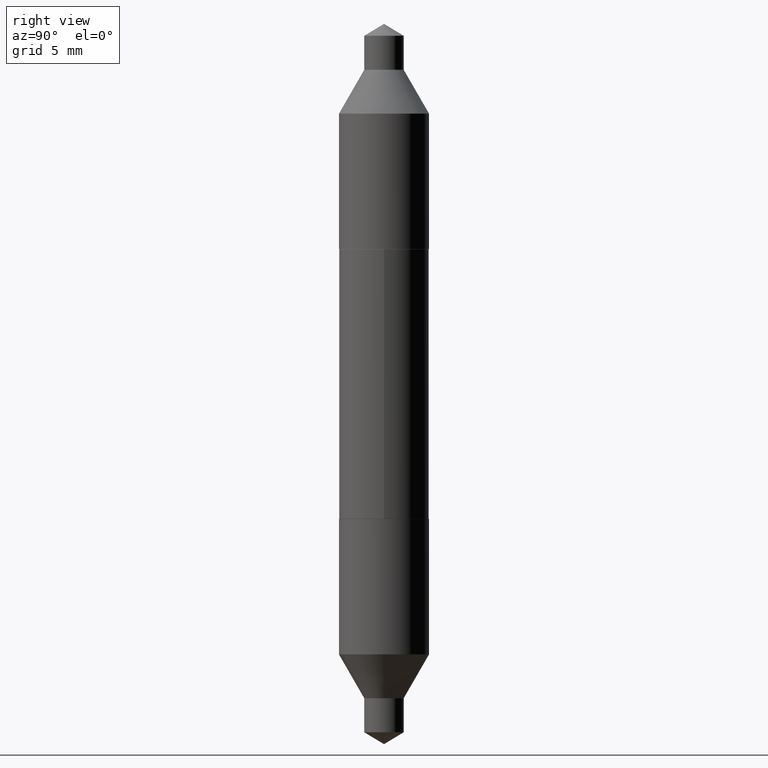
[diagram: clean part render]
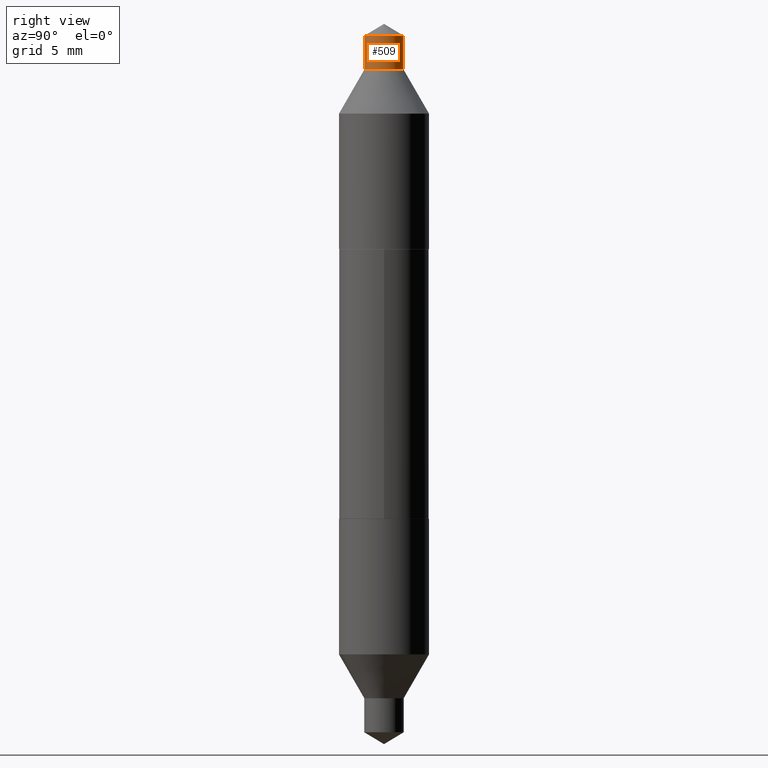
[diagram: same view with one face highlighted and labeled with its STEP entity id]
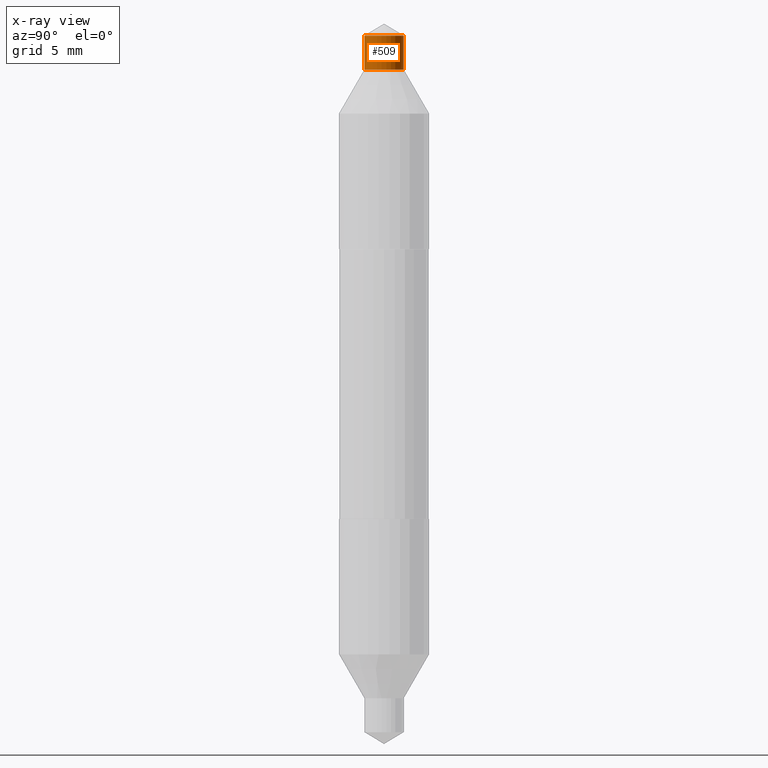
[diagram: x-ray of the same camera — body ghosted, the highlighted face saturated]
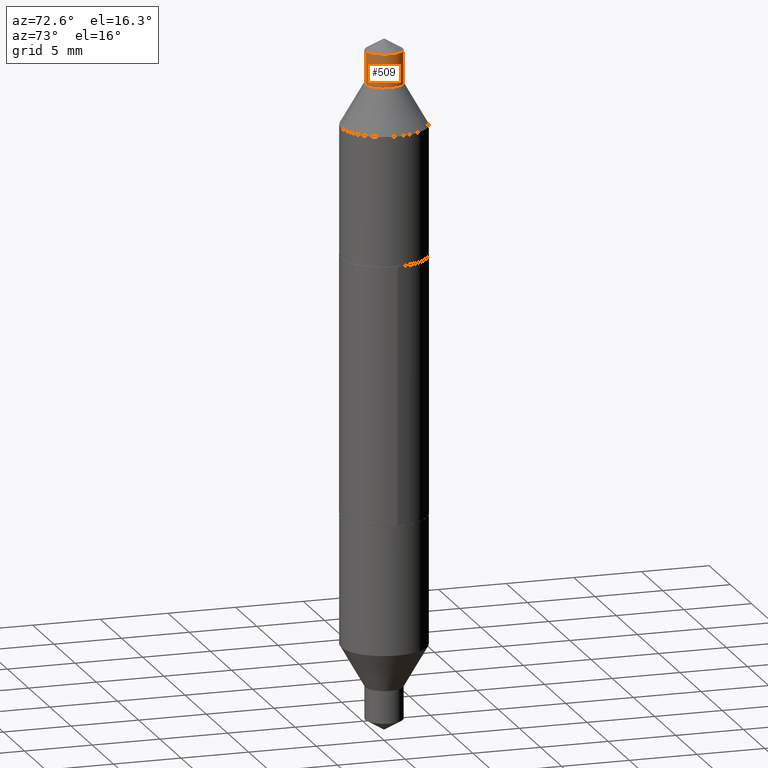
[diagram: same view with one face highlighted and labeled with its STEP entity id]
A machine part, right view. The second image highlights one B-rep face of the part: STEP entity #509.
The next image is the same camera in x-ray: the body ghosted, the highlighted face saturated — about 0% of this face is hidden behind the body in this view.
A second angle (auxiliary view) of the same face is appended — the face is thin or edge-on in the first view.
In plain terms, the highlighted cylindrical surface (edge-blend (fillet) strip) has radius 1.3894 mm, axis along (0, -0, -1).
Its self-contained STEP definition (entity closure, byte-faithful):
#24 = CARTESIAN_POINT ( 'NONE',  ( -2.359827127416466351E-29, 3.384268155191049887E-15, 0.9671329241391926068 ) ) ;
#45 = ORIENTED_EDGE ( 'NONE', *, *, #370, .F. ) ;
#49 = ORIENTED_EDGE ( 'NONE', *, *, #146, .F. ) ;
#77 = DIRECTION ( 'NONE',  ( -6.982962677686265922E-15, -1.000000000000000000, 2.497118824190368833E-15 ) ) ;
#98 = DIRECTION ( 'NONE',  ( 2.436575076777671012E-29, -3.504217665554278126E-15, -1.000000000000000000 ) ) ;
#104 = CYLINDRICAL_SURFACE ( 'NONE', #244, 0.05469999999999999168 ) ;
#137 = CARTESIAN_POINT ( 'NONE',  ( -2.129490560523995086E-29, 3.053004212445988016E-15, 0.8726000000000000423 ) ) ;
#141 = VERTEX_POINT ( 'NONE', #557 ) ;
#146 = EDGE_CURVE ( 'NONE', #141, #482, #680, .T. ) ;
#148 = ORIENTED_EDGE ( 'NONE', *, *, #283, .T. ) ;
#160 = CIRCLE ( 'NONE', #579, 0.05469999999999999168 ) ;
#201 = CARTESIAN_POINT ( 'NONE',  ( -3.819680584694478085E-16, -0.05469999999999868717, 0.3750000000000001665 ) ) ;
#244 = AXIS2_PLACEMENT_3D ( 'NONE', #321, #535, #649 ) ;
#245 = AXIS2_PLACEMENT_3D ( 'NONE', #24, #282, #77 ) ;
#260 = LINE ( 'NONE', #201, #524 ) ;
#282 = DIRECTION ( 'NONE',  ( -2.436575076777671012E-29, 3.504217665554278126E-15, 1.000000000000000000 ) ) ;
#283 = EDGE_CURVE ( 'NONE', #486, #368, #160, .T. ) ;
#321 = CARTESIAN_POINT ( 'NONE',  ( -9.170508023194260837E-30, 1.309305502066179347E-15, 0.3749999999999999445 ) ) ;
#346 = DIRECTION ( 'NONE',  ( -2.436575076777671012E-29, 3.504217665554278126E-15, 1.000000000000000000 ) ) ;
#364 = CARTESIAN_POINT ( 'NONE',  ( 3.752692404780801988E-16, 0.05470000000000304480, 0.8725999999999998202 ) ) ;
#368 = VERTEX_POINT ( 'NONE', #364 ) ;
#369 = ORIENTED_EDGE ( 'NONE', *, *, #425, .T. ) ;
#370 = EDGE_CURVE ( 'NONE', #482, #368, #475, .T. ) ;
#393 = CARTESIAN_POINT ( 'NONE',  ( -3.819680584694599372E-16, -0.05469999999999693163, 0.8726000000000001533 ) ) ;
#424 = DIRECTION ( 'NONE',  ( 2.436575076777671012E-29, -3.504217665554278126E-15, -1.000000000000000000 ) ) ;
#425 = EDGE_CURVE ( 'NONE', #141, #486, #260, .T. ) ;
#466 = DIRECTION ( 'NONE',  ( -6.982962677686265922E-15, -1.000000000000000000, 2.497118824190368833E-15 ) ) ;
#475 = LINE ( 'NONE', #698, #574 ) ;
#482 = VERTEX_POINT ( 'NONE', #547 ) ;
#485 = EDGE_LOOP ( 'NONE', ( #45, #49, #369, #148 ) ) ;
#486 = VERTEX_POINT ( 'NONE', #393 ) ;
#509 = ADVANCED_FACE ( 'NONE', ( #592 ), #104, .T. ) ;
#524 = VECTOR ( 'NONE', #424, 39.37007874015748143 ) ;
#535 = DIRECTION ( 'NONE',  ( 2.436575076777671012E-29, -3.504217665554278126E-15, -1.000000000000000000 ) ) ;
#547 = CARTESIAN_POINT ( 'NONE',  ( 3.752692404780790155E-16, 0.05470000000000336399, 0.9671329241391924958 ) ) ;
#557 = CARTESIAN_POINT ( 'NONE',  ( -3.819680584694622545E-16, -0.05469999999999660550, 0.9671329241391927178 ) ) ;
#574 = VECTOR ( 'NONE', #98, 39.37007874015748143 ) ;
#579 = AXIS2_PLACEMENT_3D ( 'NONE', #137, #346, #466 ) ;
#592 = FACE_OUTER_BOUND ( 'NONE', #485, .T. ) ;
#649 = DIRECTION ( 'NONE',  ( -6.982962677686265922E-15, -1.000000000000000000, 3.745678236285553052E-15 ) ) ;
#680 = CIRCLE ( 'NONE', #245, 0.05469999999999999168 ) ;
#698 = CARTESIAN_POINT ( 'NONE',  ( 3.752692404780935108E-16, 0.05470000000000129620, 0.3749999999999997780 ) ) ;